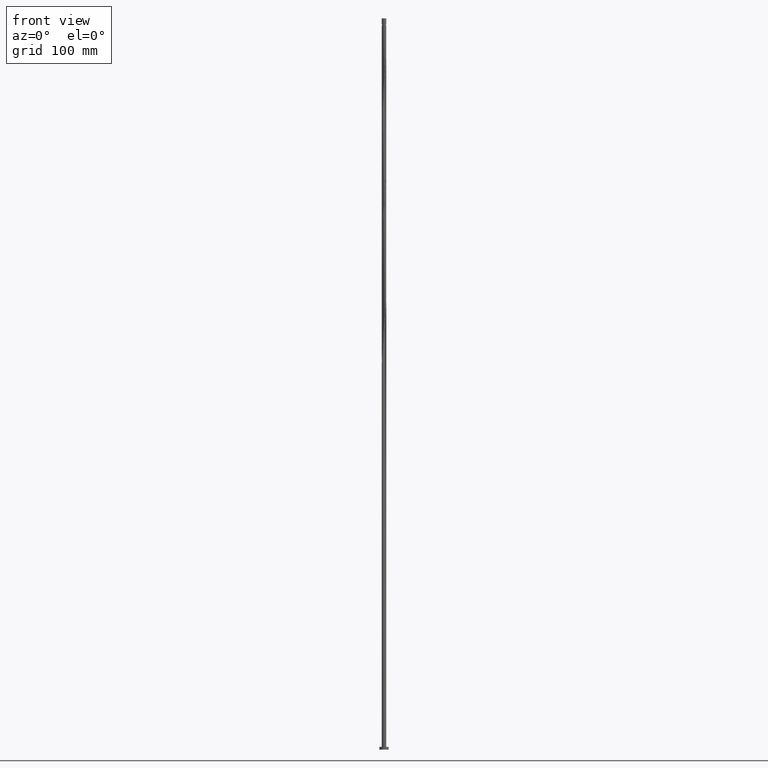
[diagram: clean part render]
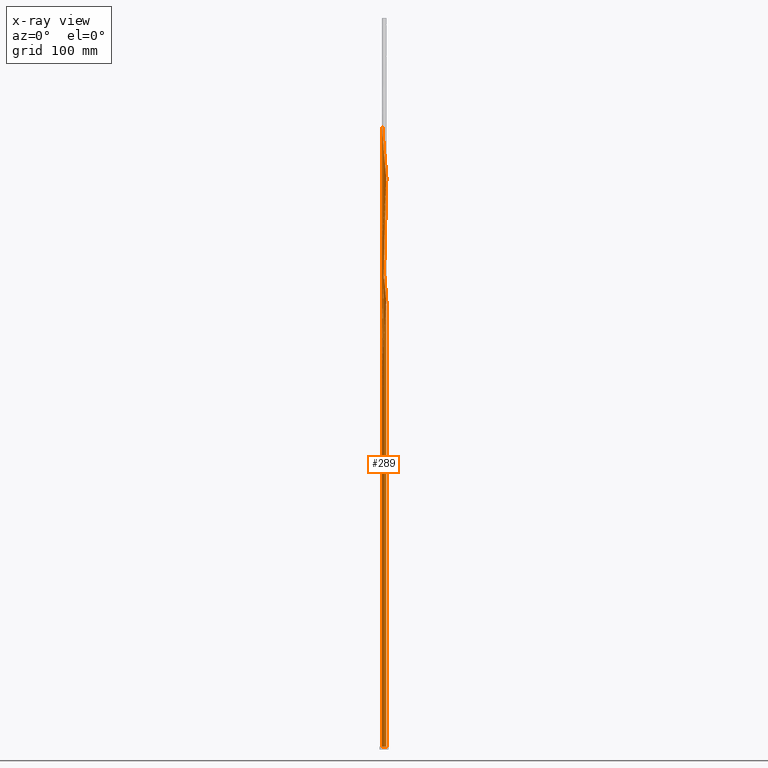
[diagram: x-ray — body ghosted, one internal face saturated and labeled with its STEP entity id]
A machine part, front view, then the same camera in x-ray: the body is ghosted and one INTERNAL B-rep face — a face not visible from any outside direction — is saturated and labeled: STEP entity #289.
In plain terms, the highlighted cylindrical surface (bore or boss wall) has radius 2.5 mm, axis along (-0, -0, -1).
Its self-contained STEP definition (entity closure, byte-faithful):
#4 = CARTESIAN_POINT ( 'NONE',  ( -0.4974937185533173101, 2.450000000000002842, 525.5992265748476484 ) ) ;
#21 = CARTESIAN_POINT ( 'NONE',  ( -2.246634610664050236, 1.116040543891517967, 544.8974721888828299 ) ) ;
#32 = CARTESIAN_POINT ( 'NONE',  ( -2.482714713521074312, -0.2934751288712467154, 557.1781739432689164 ) ) ;
#38 = ORIENTED_EDGE ( 'NONE', *, *, #2211, .T. ) ;
#72 = CARTESIAN_POINT ( 'NONE',  ( 2.458396671022258229, 0.4991987353248812376, 625.5992265748476484 ) ) ;
#76 =( BOUNDED_CURVE ( )  B_SPLINE_CURVE ( 2, ( #100, #111, #1140, #268, #1446, #2129, #1949, #800, #1272, #948, #1495, #1475, #412, #1637, #2168, #780, #2152, #1972, #1832, #631, #2180, #641, #991 ),
 .UNSPECIFIED., .F., .T. ) 
 B_SPLINE_CURVE_WITH_KNOTS ( ( 3, 2, 2, 2, 2, 2, 2, 2, 2, 2, 2, 3 ),
 ( 0.9295295809515955465, 0.9342105263157894912, 0.9407894736842105088, 0.9473684210526315264, 0.9539473684210526550, 0.9605263157894736725, 0.9671052631578946901, 0.9736842105263158187, 0.9802631578947368363, 0.9868421052631578538, 0.9934210526315789824, 1.000000000000000000 ),
 .UNSPECIFIED. ) 
 CURVE ( )  GEOMETRIC_REPRESENTATION_ITEM ( )  RATIONAL_B_SPLINE_CURVE ( ( 0.9078162034607185626, 0.9068816855935255550, 0.9090909090910476165, 0.9059859027334741244, 0.9090909090910476165, 0.9059859027334741244, 0.9090909090910476165, 0.9059859027334741244, 0.9090909090910476165, 0.9059859027334741244, 0.9090909090910476165, 0.9059859027334741244, 0.9090909090910476165, 0.9059859027334741244, 0.9090909090910476165, 0.9059859027334741244, 0.9090909090910476165, 0.9059859027334741244, 0.9090909090910476165, 0.9059859027334741244, 0.9090909090910476165, 0.9059859027334741244, 0.9090909090910476165 ) ) 
 REPRESENTATION_ITEM ( '' )  );
#85 = CARTESIAN_POINT ( 'NONE',  ( 1.112228699609016935, 2.238961214439869174, 644.8974721888828299 ) ) ;
#98 = CARTESIAN_POINT ( 'NONE',  ( 2.400549302211613334, 0.6981139216856757646, 627.3536125397603200 ) ) ;
#100 = CARTESIAN_POINT ( 'NONE',  ( -2.500000000000000000, -1.470478186866312881E-15, 429.8511587756366907 ) ) ;
#111 = CARTESIAN_POINT ( 'NONE',  ( -2.500000000000000000, 0.1472466043835902461, 428.6006316614514162 ) ) ;
#133 = CARTESIAN_POINT ( 'NONE',  ( -2.400549302211613334, -0.6981139216856755425, 427.3536125397600358 ) ) ;
#139 = AXIS2_PLACEMENT_3D ( 'NONE', #1163, #1859, #994 ) ;
#147 = CARTESIAN_POINT ( 'NONE',  ( -0.1195773175907012542, -2.505716431394641841, 453.6694020134442553 ) ) ;
#151 = ORIENTED_EDGE ( 'NONE', *, *, #973, .T. ) ;
#159 = CARTESIAN_POINT ( 'NONE',  ( 2.139466908724898975, -1.293321826333702740, 476.4764195573039842 ) ) ;
#166 = CARTESIAN_POINT ( 'NONE',  ( -2.482714713521074312, -0.2934751288712467154, 423.8448406099354884 ) ) ;
#176 = DIRECTION ( 'NONE',  ( -0.000000000000000000, -0.000000000000000000, -1.000000000000000000 ) ) ;
#177 = CARTESIAN_POINT ( 'NONE',  ( 2.032299206785748602, -1.470603108775887069, 608.0553669257249112 ) ) ;
#188 = CARTESIAN_POINT ( 'NONE',  ( 1.444679581242195976, -2.050808249687219309, 601.0378230660759300 ) ) ;
#202 = CARTESIAN_POINT ( 'NONE',  ( -2.458396671022258229, -0.4991987353248816817, 558.9325599081810196 ) ) ;
#214 = CARTESIAN_POINT ( 'NONE',  ( -2.043803699768433457, -1.439745268029342329, 567.7044897327425588 ) ) ;
#224 = CARTESIAN_POINT ( 'NONE',  ( -1.924503005532209432, -1.609099670977772734, 569.4588756976547756 ) ) ;
#231 = CARTESIAN_POINT ( 'NONE',  ( -2.500000000000004885, -3.135029636973842841E-16, 688.0139610407256896 ) ) ;
#262 = ORIENTED_EDGE ( 'NONE', *, *, #1343, .F. ) ;
#264 = CARTESIAN_POINT ( 'NONE',  ( -0.8939652988547164281, 2.334700418564149782, 662.4413318380056808 ) ) ;
#268 = CARTESIAN_POINT ( 'NONE',  ( -2.458396671022254676, 0.4991987353248814596, 425.5992265748478189 ) ) ;
#271 = VERTEX_POINT ( 'NONE', #231 ) ;
#286 = CARTESIAN_POINT ( 'NONE',  ( -1.897413592570358798, 1.627827281602462595, 672.9676476274794368 ) ) ;
#289 = ADVANCED_FACE ( 'NONE', ( #1789 ), #929, .T. ) ;
#294 = CARTESIAN_POINT ( 'NONE',  ( -1.087424091151736327, 2.260624341952042204, 397.5290511362512689 ) ) ;
#301 = CARTESIAN_POINT ( 'NONE',  ( -1.633406191873756574, -1.903916432460142749, 439.6343142941460655 ) ) ;
#311 = CARTESIAN_POINT ( 'NONE',  ( 0.4974937185533181982, 2.449999999999998401, 392.2658932415143909 ) ) ;
#314 = CARTESIAN_POINT ( 'NONE',  ( -0.4974937185533173101, 2.450000000000002842, 392.2658932415143909 ) ) ;
#320 = CARTESIAN_POINT ( 'NONE',  ( -0.7285384460830799380, -2.391491528853672222, 448.4062441187074910 ) ) ;
#330 = CARTESIAN_POINT ( 'NONE',  ( 0.000000000000000000, 0.000000000000000000, 800.0000000000000000 ) ) ;
#338 = DIRECTION ( 'NONE',  ( -0.000000000000000000, -0.000000000000000000, -1.000000000000000000 ) ) ;
#339 = CARTESIAN_POINT ( 'NONE',  ( 1.266051836196966596, -2.155716295819630979, 465.9501037678301714 ) ) ;
#340 = EDGE_CURVE ( 'NONE', #271, #1111, #348, .T. ) ;
#348 = LINE ( 'NONE', #362, #526 ) ;
#349 = CARTESIAN_POINT ( 'NONE',  ( 1.603603779798582707, -1.917929852058129381, 602.7922090309880332 ) ) ;
#355 = LINE ( 'NONE', #1172, #831 ) ;
#362 = CARTESIAN_POINT ( 'NONE',  ( -2.500000000000000000, 0.000000000000000000, 800.0000000000000000 ) ) ;
#363 = CARTESIAN_POINT ( 'NONE',  ( -2.400549302211613334, -0.6981139216856755425, 560.6869458730934639 ) ) ;
#377 = CARTESIAN_POINT ( 'NONE',  ( -1.465580253573449232, -2.025357874632432775, 574.7220335923917673 ) ) ;
#380 = CARTESIAN_POINT ( 'NONE',  ( -2.500000000000000000, 0.000000000000000000, 3.000000000000000000 ) ) ;
#386 = CARTESIAN_POINT ( 'NONE',  ( -1.266051836196966818, 2.155716295819630535, 532.6167704344968570 ) ) ;
#397 = CARTESIAN_POINT ( 'NONE',  ( 0.3249755629059850048, 2.478788188513483259, 518.5816827151985535 ) ) ;
#408 = DIRECTION ( 'NONE',  ( 0.000000000000000000, 0.000000000000000000, 1.000000000000000000 ) ) ;
#409 = CARTESIAN_POINT ( 'NONE',  ( 2.043803699768433013, 1.439745268029343217, 634.3711563994093012 ) ) ;
#412 = CARTESIAN_POINT ( 'NONE',  ( -1.465580253573446345, 2.025357874632430111, 409.8097528906371849 ) ) ;
#434 = CARTESIAN_POINT ( 'NONE',  ( -2.032299206785748602, 1.470603108775886403, 674.7220335923916537 ) ) ;
#454 = VERTEX_POINT ( 'NONE', #595 ) ;
#456 = ORIENTED_EDGE ( 'NONE', *, *, #2003, .T. ) ;
#458 = CARTESIAN_POINT ( 'NONE',  ( 1.924503005532210320, 1.609099670977771401, 636.1255423643215181 ) ) ;
#473 = CARTESIAN_POINT ( 'NONE',  ( -2.500000000000003997, -0.1472466043835884697, 422.5978214882442217 ) ) ;
#479 = ORIENTED_EDGE ( 'NONE', *, *, #2003, .F. ) ;
#481 =( BOUNDED_CURVE ( )  B_SPLINE_CURVE ( 2, ( #1086, #1782, #1143, #294, #1661, #835, #1706, #855, #687, #870, #2028, #845, #2046, #2053, #2035, #2019, #1524, #1885, #669 ),
 .UNSPECIFIED., .F., .T. ) 
 B_SPLINE_CURVE_WITH_KNOTS ( ( 3, 2, 2, 2, 2, 2, 2, 2, 2, 3 ),
 ( 0.000000000000000000, 0.006578947368421017572, 0.01315789473684214617, 0.01973684210526316374, 0.02631578947368418131, 0.03289473684210530990, 0.03947368421052632748, 0.04605263157894734505, 0.05263157894736847364, 0.05452958095159550489 ),
 .UNSPECIFIED. ) 
 CURVE ( )  GEOMETRIC_REPRESENTATION_ITEM ( )  RATIONAL_B_SPLINE_CURVE ( ( 0.9090909090910541668, 0.9059859027334807857, 0.9090909090910541668, 0.9059859027334807857, 0.9090909090910541668, 0.9059859027334807857, 0.9090909090910541668, 0.9059859027334807857, 0.9090909090910541668, 0.9059859027334807857, 0.9090909090910541668, 0.9059859027334807857, 0.9090909090910541668, 0.9059859027334807857, 0.9090909090910541668, 0.9059859027334807857, 0.9090909090910541668, 0.9081951262310028472, 0.9078162034607253350 ) ) 
 REPRESENTATION_ITEM ( '' )  );
#486 = CARTESIAN_POINT ( 'NONE',  ( -1.465580253573449232, -2.025357874632432775, 441.3887002590582824 ) ) ;
#514 = CARTESIAN_POINT ( 'NONE',  ( -2.252903163702812961, -1.083709986563691663, 430.8623844695845264 ) ) ;
#524 = CARTESIAN_POINT ( 'NONE',  ( -2.487283522779933254, 0.3260893232700637356, 551.9150160485321521 ) ) ;
#526 = VECTOR ( 'NONE', #176, 1000.000000000000000 ) ;
#535 = CARTESIAN_POINT ( 'NONE',  ( 0.8939652988547160950, -2.334700418564150226, 595.7746651713389383 ) ) ;
#544 = CARTESIAN_POINT ( 'NONE',  ( 0.4974937185533176986, -2.450000000000002842, 592.2658932415143909 ) ) ;
#558 = CARTESIAN_POINT ( 'NONE',  ( 0.5303738082212694493, 2.451859945632325566, 516.8272967502863366 ) ) ;
#568 = CARTESIAN_POINT ( 'NONE',  ( -0.3249755629059847273, -2.478788188513483259, 585.2483493818652960 ) ) ;
#582 = CARTESIAN_POINT ( 'NONE',  ( -1.266051836196966818, 2.155716295819630535, 665.9501037678302282 ) ) ;
#595 = CARTESIAN_POINT ( 'NONE',  ( -2.500000000000004885, 2.157198964489144147E-15, 421.3472943740588903 ) ) ;
#596 = CARTESIAN_POINT ( 'NONE',  ( 2.482714713521074312, 0.2934751288712458828, 623.8448406099354315 ) ) ;
#606 = CARTESIAN_POINT ( 'NONE',  ( -2.139466908724899419, 1.293321826333702074, 676.4764195573037568 ) ) ;
#615 = ORIENTED_EDGE ( 'NONE', *, *, #1110, .F. ) ;
#618 = CARTESIAN_POINT ( 'NONE',  ( -1.444679581242196642, 2.050808249687219309, 667.7044897327425588 ) ) ;
#627 = CARTESIAN_POINT ( 'NONE',  ( 1.633406191873756796, 1.903916432460142527, 639.6343142941458382 ) ) ;
#631 = CARTESIAN_POINT ( 'NONE',  ( -0.1195773175906997554, 2.505716431394637844, 397.5290511362513826 ) ) ;
#635 = DIRECTION ( 'NONE',  ( 1.000000000000000000, 0.000000000000000000, 0.000000000000000000 ) ) ;
#641 = CARTESIAN_POINT ( 'NONE',  ( 0.2944809305489391460, 2.491223504823743884, 394.0202792064266646 ) ) ;
#654 = CARTESIAN_POINT ( 'NONE',  ( 1.444679581242195976, -2.050808249687219309, 467.7044897327424451 ) ) ;
#665 = CARTESIAN_POINT ( 'NONE',  ( 0.2944809305489382578, -2.491223504823747881, 457.1781739432686891 ) ) ;
#669 = CARTESIAN_POINT ( 'NONE',  ( -2.500000000000004885, 2.157198964489144147E-15, 421.3472943740588903 ) ) ;
#673 = CARTESIAN_POINT ( 'NONE',  ( 2.458396671022258229, 0.4991987353248812376, 492.2658932415145046 ) ) ;
#683 = CARTESIAN_POINT ( 'NONE',  ( 2.400549302211613334, 0.6981139216856757646, 494.0202792064266646 ) ) ;
#687 = CARTESIAN_POINT ( 'NONE',  ( -1.897413592570358798, 1.627827281602462595, 406.3009809608128080 ) ) ;
#695 = CARTESIAN_POINT ( 'NONE',  ( 0.2944809305489382578, -2.491223504823747881, 590.5115072766020603 ) ) ;
#705 = CARTESIAN_POINT ( 'NONE',  ( -2.139466908724899419, 1.293321826333702074, 543.1430862239704993 ) ) ;
#716 = CARTESIAN_POINT ( 'NONE',  ( -1.897413592570358798, 1.627827281602462595, 539.6343142941460655 ) ) ;
#726 = CARTESIAN_POINT ( 'NONE',  ( -1.297754315273141446, -2.146799316804722579, 576.4764195573038705 ) ) ;
#732 = VERTEX_POINT ( 'NONE', #380 ) ;
#736 = CARTESIAN_POINT ( 'NONE',  ( 0.1195773175907005603, 2.505716431394641841, 520.3360686801109978 ) ) ;
#761 = CARTESIAN_POINT ( 'NONE',  ( 2.252903163702813405, 1.083709986563690775, 630.8623844695848675 ) ) ;
#777 = CARTESIAN_POINT ( 'NONE',  ( -2.399687678902772348, 0.7310353022703551806, 681.7395774520406349 ) ) ;
#780 = CARTESIAN_POINT ( 'NONE',  ( -0.9267030839448892054, 2.331123112075013992, 404.5465949959005343 ) ) ;
#787 = CARTESIAN_POINT ( 'NONE',  ( -2.246634610664050236, 1.116040543891517967, 678.2308055222163148 ) ) ;
#798 = CARTESIAN_POINT ( 'NONE',  ( 2.443485600841353467, -0.5285623127702102630, 616.8272967502862230 ) ) ;
#800 = CARTESIAN_POINT ( 'NONE',  ( -2.163104394004653486, 1.270390865080911702, 418.5816827151986672 ) ) ;
#806 = VERTEX_POINT ( 'NONE', #2063 ) ;
#812 = DIRECTION ( 'NONE',  ( 0.000000000000000000, -0.000000000000000000, -1.000000000000000000 ) ) ;
#831 = VECTOR ( 'NONE', #2213, 1000.000000000000000 ) ;
#835 = CARTESIAN_POINT ( 'NONE',  ( -1.444679581242196642, 2.050808249687219309, 401.0378230660758163 ) ) ;
#842 = CARTESIAN_POINT ( 'NONE',  ( 2.323161144783412180, -0.9235379230809367401, 479.9851914871284748 ) ) ;
#845 = CARTESIAN_POINT ( 'NONE',  ( -2.246634610664050236, 1.116040543891517967, 411.5641388555495723 ) ) ;
#851 = CARTESIAN_POINT ( 'NONE',  ( -2.500000000000004885, 2.157198964489144147E-15, 421.3472943740588903 ) ) ;
#855 = CARTESIAN_POINT ( 'NONE',  ( -1.762527978354969882, 1.785051454429039453, 404.5465949959004206 ) ) ;
#859 = CARTESIAN_POINT ( 'NONE',  ( 2.399687678902772348, -0.7310353022703568460, 481.7395774520406917 ) ) ;
#867 = CARTESIAN_POINT ( 'NONE',  ( 1.465580253573450342, 2.025357874632431887, 508.0553669257250817 ) ) ;
#870 = CARTESIAN_POINT ( 'NONE',  ( -2.032299206785748602, 1.470603108775886403, 408.0553669257249680 ) ) ;
#877 = CARTESIAN_POINT ( 'NONE',  ( -1.762527978354969882, 1.785051454429039453, 537.8799283292337350 ) ) ;
#887 = CARTESIAN_POINT ( 'NONE',  ( 2.163104394004657482, 1.270390865080912812, 499.2834371011635426 ) ) ;
#900 = CARTESIAN_POINT ( 'NONE',  ( -0.1195773175907012542, -2.505716431394641841, 587.0027353467775129 ) ) ;
#910 = CARTESIAN_POINT ( 'NONE',  ( -1.087424091151736327, 2.260624341952042204, 530.8623844695846401 ) ) ;
#923 = CARTESIAN_POINT ( 'NONE',  ( -0.7005065065576968619, 2.408776495176257804, 660.6869458730934639 ) ) ;
#929 = CYLINDRICAL_SURFACE ( 'NONE', #987, 2.500000000000000000 ) ;
#934 = CARTESIAN_POINT ( 'NONE',  ( -1.087424091151736327, 2.260624341952042204, 664.1957178029180113 ) ) ;
#941 = EDGE_LOOP ( 'NONE', ( #2173, #262, #456, #38, #1008, #479, #1500, #151, #615 ) ) ;
#944 = CARTESIAN_POINT ( 'NONE',  ( 0.5303738082212694493, 2.451859945632325566, 650.1606300836197079 ) ) ;
#948 = CARTESIAN_POINT ( 'NONE',  ( -1.924503005532206323, 1.609099670977771179, 415.0729107853741198 ) ) ;
#956 = CARTESIAN_POINT ( 'NONE',  ( -0.4974937185533173101, 2.450000000000002842, 658.9325599081814744 ) ) ;
#973 = EDGE_CURVE ( 'NONE', #2185, #1126, #1545, .T. ) ;
#981 = CARTESIAN_POINT ( 'NONE',  ( 0.8939652988547160950, -2.334700418564150226, 462.4413318380055671 ) ) ;
#987 = AXIS2_PLACEMENT_3D ( 'NONE', #330, #338, #2239 ) ;
#991 = CARTESIAN_POINT ( 'NONE',  ( 0.4974937185533181982, 2.449999999999998401, 392.2658932415144477 ) ) ;
#994 = DIRECTION ( 'NONE',  ( 1.000000000000000000, 0.000000000000000000, 0.000000000000000000 ) ) ;
#1008 = ORIENTED_EDGE ( 'NONE', *, *, #1608, .T. ) ;
#1014 = CARTESIAN_POINT ( 'NONE',  ( -0.9267030839448907598, -2.331123112075017545, 446.6518581537951604 ) ) ;
#1029 = CARTESIAN_POINT ( 'NONE',  ( 1.762527978354968994, -1.785051454429040563, 604.5465949959005911 ) ) ;
#1042 = CARTESIAN_POINT ( 'NONE',  ( -2.163104394004657482, -1.270390865080913256, 565.9501037678301145 ) ) ;
#1053 = CARTESIAN_POINT ( 'NONE',  ( 2.043803699768433013, 1.439745268029343217, 501.0378230660759300 ) ) ;
#1060 = CARTESIAN_POINT ( 'NONE',  ( -0.7285384460830799380, -2.391491528853672222, 581.7395774520408622 ) ) ;
#1073 = CARTESIAN_POINT ( 'NONE',  ( -2.507032756019887731, -0.08775152241761188798, 555.4237879783566996 ) ) ;
#1086 = CARTESIAN_POINT ( 'NONE',  ( -0.4974937185533173101, 2.450000000000002842, 392.2658932415143909 ) ) ;
#1087 = CARTESIAN_POINT ( 'NONE',  ( -0.08745180647911761362, 2.498469968109195083, 655.4237879783566996 ) ) ;
#1110 = EDGE_CURVE ( 'NONE', #1111, #1126, #76, .T. ) ;
#1111 = VERTEX_POINT ( 'NONE', #1546 ) ;
#1116 = CARTESIAN_POINT ( 'NONE',  ( -2.500000000000004885, -3.135029636973842841E-16, 688.0139610407256896 ) ) ;
#1126 = VERTEX_POINT ( 'NONE', #311 ) ;
#1127 = CARTESIAN_POINT ( 'NONE',  ( 2.323161144783412180, -0.9235379230809367401, 613.3185248204619029 ) ) ;
#1136 = CARTESIAN_POINT ( 'NONE',  ( -0.2944809305489379803, 2.491223504823747881, 657.1781739432689164 ) ) ;
#1140 = CARTESIAN_POINT ( 'NONE',  ( -2.482714713521069871, 0.2934751288712468820, 427.3536125397600358 ) ) ;
#1143 = CARTESIAN_POINT ( 'NONE',  ( -0.8939652988547164281, 2.334700418564149782, 395.7746651713390520 ) ) ;
#1160 = CARTESIAN_POINT ( 'NONE',  ( 2.342701933400969772, 0.8970291080464682931, 495.7746651713391088 ) ) ;
#1163 = CARTESIAN_POINT ( 'NONE',  ( 0.000000000000000000, 0.000000000000000000, 3.000000000000000000 ) ) ;
#1169 = CARTESIAN_POINT ( 'NONE',  ( -1.778954598702983114, -1.756508051718957519, 437.8799283292337918 ) ) ;
#1172 = CARTESIAN_POINT ( 'NONE',  ( -2.500000000000000000, 0.000000000000000000, 800.0000000000000000 ) ) ;
#1179 = CARTESIAN_POINT ( 'NONE',  ( 0.08745180647911898753, -2.498469968109194639, 455.4237879783565859 ) ) ;
#1187 = CARTESIAN_POINT ( 'NONE',  ( -2.163104394004657482, -1.270390865080913256, 432.6167704344968570 ) ) ;
#1196 = CARTESIAN_POINT ( 'NONE',  ( -0.9267030839448907598, -2.331123112075017545, 579.9851914871283043 ) ) ;
#1208 = CARTESIAN_POINT ( 'NONE',  ( -0.5303738082212692273, -2.451859945632325566, 583.4939634169530791 ) ) ;
#1213 = AXIS2_PLACEMENT_3D ( 'NONE', #1456, #408, #635 ) ;
#1221 = CARTESIAN_POINT ( 'NONE',  ( 1.897413592570359020, -1.627827281602463261, 606.3009809608126943 ) ) ;
#1229 = CARTESIAN_POINT ( 'NONE',  ( -0.08745180647911761362, 2.498469968109195083, 522.0904546450231010 ) ) ;
#1239 = CARTESIAN_POINT ( 'NONE',  ( 1.297754315273143000, 2.146799316804722135, 509.8097528906373554 ) ) ;
#1269 = CARTESIAN_POINT ( 'NONE',  ( -2.500000000000005329, 0.05961833561290537375, 687.5076380222856187 ) ) ;
#1272 = CARTESIAN_POINT ( 'NONE',  ( -2.043803699768429905, 1.439745268029341441, 416.8272967502863935 ) ) ;
#1280 = CARTESIAN_POINT ( 'NONE',  ( -2.497158139399911381, 0.1191689004262258822, 687.0027353467776265 ) ) ;
#1294 = CARTESIAN_POINT ( 'NONE',  ( 0.9267030839448909818, 2.331123112075017545, 646.6518581537951604 ) ) ;
#1305 = CARTESIAN_POINT ( 'NONE',  ( 1.465580253573450342, 2.025357874632431887, 641.3887002590583961 ) ) ;
#1318 = CARTESIAN_POINT ( 'NONE',  ( -2.043803699768433457, -1.439745268029342329, 434.3711563994091307 ) ) ;
#1330 = CARTESIAN_POINT ( 'NONE',  ( 2.246634610664049347, -1.116040543891518189, 478.2308055222161443 ) ) ;
#1343 = EDGE_CURVE ( 'NONE', #454, #271, #1401, .T. ) ;
#1351 = CARTESIAN_POINT ( 'NONE',  ( -1.924503005532209432, -1.609099670977772734, 436.1255423643214613 ) ) ;
#1359 = CARTESIAN_POINT ( 'NONE',  ( 2.032299206785748602, -1.470603108775887069, 474.7220335923915968 ) ) ;
#1368 = CARTESIAN_POINT ( 'NONE',  ( 0.7005065065576958627, -2.408776495176258248, 594.0202792064266077 ) ) ;
#1380 = CARTESIAN_POINT ( 'NONE',  ( -2.497158139399911381, 0.1191689004262258822, 553.6694020134442553 ) ) ;
#1390 = CARTESIAN_POINT ( 'NONE',  ( 1.778954598702983780, 1.756508051718957519, 504.5465949959003638 ) ) ;
#1401 =( BOUNDED_CURVE ( )  B_SPLINE_CURVE ( 2, ( #851, #473, #166, #1864, #133, #1692, #514, #1187, #1318, #1351, #1169, #301, #486, #1505, #2199, #1014, #320, #2218, #2208, #147, #1179, #665, #1844, #1519, #981, #1882, #339, #654, #2226, #1702, #1712, #1359, #159, #1330, #842, #859, #1537, #2005, #1669, #1529, #2016, #673, #683, #1160, #1855, #887, #1053, #1404, #1390, #2050, #867, #1239, #2099, #1556, #1600, #558, #397, #736, #1229, #2240, #4, #1924, #1580, #910, #386, #1935, #1416, #877, #716, #1757, #705, #21, #1745, #2084, #2073, #524, #1380, #1073, #32, #202, #363, #1592, #1767, #1042, #214, #224, #1721, #2059, #377, #726, #1568, #1196, #1060, #1208, #568, #900, #1900, #695, #544, #1368, #535, #1888, #1732, #188, #349, #1029, #1221, #177, #1912, #1458, #1127, #1946, #798, #1829, #2138, #1810, #596, #72, #98, #1481, #761, #1981, #409, #458, #2124, #627, #1305, #1797, #85, #1294, #1441, #944, #1968, #1473, #1087, #1136, #956, #923, #264, #934, #582, #618, #1623, #1612, #286, #434, #606, #787, #1783, #777, #1991, #2150, #1280, #1269, #1116 ),
 .UNSPECIFIED., .F., .T. ) 
 B_SPLINE_CURVE_WITH_KNOTS ( ( 3, 2, 2, 2, 2, 2, 2, 2, 2, 2, 2, 2, 2, 2, 2, 2, 2, 2, 2, 2, 2, 2, 2, 2, 2, 2, 2, 2, 2, 2, 2, 2, 2, 2, 2, 2, 2, 2, 2, 2, 2, 2, 2, 2, 2, 2, 2, 2, 2, 2, 2, 2, 2, 2, 2, 2, 2, 2, 2, 2, 2, 2, 2, 2, 2, 2, 2, 2, 2, 2, 2, 2, 2, 2, 2, 2, 2, 3 ),
 ( 0.05452958095159550489, 0.05921052631578949121, 0.06578947368421050879, 0.07236842105263152636, 0.07894736842105265495, 0.08552631578947367252, 0.09210526315789469010, 0.09868421052631581869, 0.1052631578947368363, 0.1118421052631578538, 0.1184210526315789824, 0.1250000000000000000, 0.1315789473684210176, 0.1381578947368421462, 0.1447368421052631637, 0.1513157894736841813, 0.1578947368421053099, 0.1644736842105263275, 0.1710526315789473450, 0.1776315789473684736, 0.1842105263157894912, 0.1907894736842105088, 0.1973684210526315264, 0.2039473684210526550, 0.2105263157894736725, 0.2171052631578946901, 0.2236842105263158187, 0.2302631578947368363, 0.2368421052631578538, 0.2434210526315789824, 0.2500000000000000000, 0.2565789473684210176, 0.2631578947368421462, 0.2697368421052631637, 0.2763157894736841813, 0.2828947368421053099, 0.2894736842105263275, 0.2960526315789473450, 0.3026315789473684736, 0.3092105263157894912, 0.3157894736842105088, 0.3223684210526315264, 0.3289473684210526550, 0.3355263157894736725, 0.3421052631578946901, 0.3486842105263158187, 0.3552631578947368363, 0.3618421052631578538, 0.3684210526315789824, 0.3750000000000000000, 0.3815789473684210176, 0.3881578947368421462, 0.3947368421052631637, 0.4013157894736841813, 0.4078947368421053099, 0.4144736842105263275, 0.4210526315789473450, 0.4276315789473684736, 0.4342105263157894912, 0.4407894736842105088, 0.4473684210526315264, 0.4539473684210526550, 0.4605263157894736725, 0.4671052631578946901, 0.4736842105263158187, 0.4802631578947368363, 0.4868421052631578538, 0.4934210526315789824, 0.5000000000000000000, 0.5065789473684210176, 0.5131578947368420351, 0.5197368421052631637, 0.5263157894736842923, 0.5328947368421053099, 0.5394736842105263275, 0.5460526315789473450, 0.5526315789473683626, 0.5545295809515957686 ),
 .UNSPECIFIED. ) 
 CURVE ( )  GEOMETRIC_REPRESENTATION_ITEM ( )  RATIONAL_B_SPLINE_CURVE ( ( 0.9078162034607253350, 0.9068816855935322163, 0.9090909090910541668, 0.9059859027334807857, 0.9090909090910541668, 0.9059859027334807857, 0.9090909090910541668, 0.9059859027334807857, 0.9090909090910541668, 0.9059859027334807857, 0.9090909090910541668, 0.9059859027334807857, 0.9090909090910541668, 0.9059859027334807857, 0.9090909090910541668, 0.9059859027334807857, 0.9090909090910541668, 0.9059859027334807857, 0.9090909090910541668, 0.9059859027334807857, 0.9090909090910541668, 0.9059859027334807857, 0.9090909090910541668, 0.9059859027334807857, 0.9090909090910541668, 0.9059859027334807857, 0.9090909090910541668, 0.9059859027334807857, 0.9090909090910541668, 0.9059859027334807857, 0.9090909090910541668, 0.9059859027334807857, 0.9090909090910541668, 0.9059859027334807857, 0.9090909090910541668, 0.9059859027334807857, 0.9090909090910541668, 0.9059859027334807857, 0.9090909090910541668, 0.9059859027334807857, 0.9090909090910541668, 0.9059859027334807857, 0.9090909090910541668, 0.9059859027334807857, 0.9090909090910541668, 0.9059859027334807857, 0.9090909090910541668, 0.9059859027334807857, 0.9090909090910541668, 0.9059859027334807857, 0.9090909090910541668, 0.9059859027334807857, 0.9090909090910541668, 0.9059859027334807857, 0.9090909090910541668, 0.9059859027334807857, 0.9090909090910541668, 0.9059859027334807857, 0.9090909090910541668, 0.9059859027334807857, 0.9090909090910541668, 0.9059859027334807857, 0.9090909090910541668, 0.9059859027334807857, 0.9090909090910541668, 0.9059859027334807857, 0.9090909090910541668, 0.9059859027334807857, 0.9090909090910541668, 0.9059859027334807857, 0.9090909090910541668, 0.9059859027334807857, 0.9090909090910541668, 0.9059859027334807857, 0.9090909090910541668, 0.9059859027334807857, 0.9090909090910541668, 0.9059859027334807857, 0.9090909090910541668, 0.9059859027334807857, 0.9090909090910541668, 0.9059859027334807857, 0.9090909090910541668, 0.9059859027334807857, 0.9090909090910541668, 0.9059859027334807857, 0.9090909090910541668, 0.9059859027334807857, 0.9090909090910541668, 0.9059859027334807857, 0.9090909090910541668, 0.9059859027334807857, 0.9090909090910541668, 0.9059859027334807857, 0.9090909090910541668, 0.9059859027334807857, 0.9090909090910541668, 0.9059859027334807857, 0.9090909090910541668, 0.9059859027334807857, 0.9090909090910541668, 0.9059859027334807857, 0.9090909090910541668, 0.9059859027334807857, 0.9090909090910541668, 0.9059859027334807857, 0.9090909090910541668, 0.9059859027334807857, 0.9090909090910541668, 0.9059859027334807857, 0.9090909090910541668, 0.9059859027334807857, 0.9090909090910541668, 0.9059859027334807857, 0.9090909090910541668, 0.9059859027334807857, 0.9090909090910541668, 0.9059859027334807857, 0.9090909090910541668, 0.9059859027334807857, 0.9090909090910541668, 0.9059859027334807857, 0.9090909090910541668, 0.9059859027334807857, 0.9090909090910541668, 0.9059859027334807857, 0.9090909090910541668, 0.9059859027334807857, 0.9090909090910541668, 0.9059859027334807857, 0.9090909090910541668, 0.9059859027334807857, 0.9090909090910541668, 0.9059859027334807857, 0.9090909090910541668, 0.9059859027334807857, 0.9090909090910541668, 0.9059859027334807857, 0.9090909090910541668, 0.9059859027334807857, 0.9090909090910541668, 0.9059859027334807857, 0.9090909090910541668, 0.9059859027334807857, 0.9090909090910541668, 0.9059859027334807857, 0.9090909090910541668, 0.9059859027334807857, 0.9090909090910541668, 0.9059859027334807857, 0.9090909090910541668, 0.9059859027334807857, 0.9090909090910541668, 0.9081951262310025141, 0.9078162034607251130 ) ) 
 REPRESENTATION_ITEM ( '' )  );
#1404 = CARTESIAN_POINT ( 'NONE',  ( 1.924503005532210320, 1.609099670977771401, 502.7922090309882037 ) ) ;
#1416 = CARTESIAN_POINT ( 'NONE',  ( -1.603603779798582929, 1.917929852058129381, 536.1255423643215181 ) ) ;
#1441 = CARTESIAN_POINT ( 'NONE',  ( 0.7285384460830813813, 2.391491528853672222, 648.4062441187074910 ) ) ;
#1446 = CARTESIAN_POINT ( 'NONE',  ( -2.400549302211609781, 0.6981139216856749874, 423.8448406099354315 ) ) ;
#1456 = CARTESIAN_POINT ( 'NONE',  ( 0.000000000000000000, 0.000000000000000000, 3.000000000000000000 ) ) ;
#1458 = CARTESIAN_POINT ( 'NONE',  ( 2.246634610664049347, -1.116040543891518189, 611.5641388555494586 ) ) ;
#1473 = CARTESIAN_POINT ( 'NONE',  ( 0.1195773175907005603, 2.505716431394641841, 653.6694020134443690 ) ) ;
#1475 = CARTESIAN_POINT ( 'NONE',  ( -1.633406191873753688, 1.903916432460140529, 411.5641388555495723 ) ) ;
#1481 = CARTESIAN_POINT ( 'NONE',  ( 2.342701933400969772, 0.8970291080464682931, 629.1079985046721958 ) ) ;
#1495 = CARTESIAN_POINT ( 'NONE',  ( -1.778954598702979784, 1.756508051718955743, 413.3185248204617892 ) ) ;
#1500 = ORIENTED_EDGE ( 'NONE', *, *, #1773, .F. ) ;
#1505 = CARTESIAN_POINT ( 'NONE',  ( -1.297754315273141446, -2.146799316804722579, 443.1430862239705561 ) ) ;
#1519 = CARTESIAN_POINT ( 'NONE',  ( 0.7005065065576958627, -2.408776495176258248, 460.6869458730933502 ) ) ;
#1524 = CARTESIAN_POINT ( 'NONE',  ( -2.497158139399911381, 0.1191689004262258822, 420.3360686801108841 ) ) ;
#1529 = CARTESIAN_POINT ( 'NONE',  ( 2.507032756019887731, 0.08775152241761056959, 488.7571213116898434 ) ) ;
#1537 = CARTESIAN_POINT ( 'NONE',  ( 2.443485600841353467, -0.5285623127702102630, 483.4939634169530223 ) ) ;
#1545 = CIRCLE ( 'NONE', #1582, 2.500000000000000000 ) ;
#1546 = CARTESIAN_POINT ( 'NONE',  ( -2.500000000000000000, -1.470478186866312881E-15, 429.8511587756367476 ) ) ;
#1556 = CARTESIAN_POINT ( 'NONE',  ( 0.9267030839448909818, 2.331123112075017545, 513.3185248204619029 ) ) ;
#1568 = CARTESIAN_POINT ( 'NONE',  ( -1.112228699609016935, -2.238961214439870062, 578.2308055222164285 ) ) ;
#1580 = CARTESIAN_POINT ( 'NONE',  ( -0.8939652988547164281, 2.334700418564149782, 529.1079985046723095 ) ) ;
#1582 = AXIS2_PLACEMENT_3D ( 'NONE', #1824, #812, #1960 ) ;
#1592 = CARTESIAN_POINT ( 'NONE',  ( -2.342701933400969327, -0.8970291080464696254, 562.4413318380055671 ) ) ;
#1600 = CARTESIAN_POINT ( 'NONE',  ( 0.7285384460830813813, 2.391491528853672222, 515.0729107853740061 ) ) ;
#1608 = EDGE_CURVE ( 'NONE', #806, #732, #1899, .T. ) ;
#1612 = CARTESIAN_POINT ( 'NONE',  ( -1.762527978354969882, 1.785051454429039453, 671.2132616625671062 ) ) ;
#1623 = CARTESIAN_POINT ( 'NONE',  ( -1.603603779798582929, 1.917929852058129381, 669.4588756976548893 ) ) ;
#1637 = CARTESIAN_POINT ( 'NONE',  ( -1.297754315273139447, 2.146799316804719471, 408.0553669257249680 ) ) ;
#1661 = CARTESIAN_POINT ( 'NONE',  ( -1.266051836196966818, 2.155716295819630535, 399.2834371011635994 ) ) ;
#1669 = CARTESIAN_POINT ( 'NONE',  ( 2.497158139399910937, -0.1191689004262256601, 487.0027353467775697 ) ) ;
#1692 = CARTESIAN_POINT ( 'NONE',  ( -2.342701933400969327, -0.8970291080464696254, 429.1079985046723664 ) ) ;
#1702 = CARTESIAN_POINT ( 'NONE',  ( 1.762527978354968994, -1.785051454429040563, 471.2132616625669925 ) ) ;
#1706 = CARTESIAN_POINT ( 'NONE',  ( -1.603603779798582929, 1.917929852058129381, 402.7922090309880900 ) ) ;
#1712 = CARTESIAN_POINT ( 'NONE',  ( 1.897413592570359020, -1.627827281602463261, 472.9676476274792662 ) ) ;
#1721 = CARTESIAN_POINT ( 'NONE',  ( -1.778954598702983114, -1.756508051718957519, 571.2132616625669925 ) ) ;
#1732 = CARTESIAN_POINT ( 'NONE',  ( 1.266051836196966596, -2.155716295819630979, 599.2834371011637131 ) ) ;
#1745 = CARTESIAN_POINT ( 'NONE',  ( -2.323161144783412180, 0.9235379230809367401, 546.6518581537952741 ) ) ;
#1757 = CARTESIAN_POINT ( 'NONE',  ( -2.032299206785748602, 1.470603108775886403, 541.3887002590583961 ) ) ;
#1758 = CIRCLE ( 'NONE', #139, 2.500000000000000000 ) ;
#1767 = CARTESIAN_POINT ( 'NONE',  ( -2.252903163702812961, -1.083709986563691663, 564.1957178029178976 ) ) ;
#1773 = EDGE_CURVE ( 'NONE', #2185, #454, #481, .T. ) ;
#1782 = CARTESIAN_POINT ( 'NONE',  ( -0.7005065065576968619, 2.408776495176257804, 394.0202792064266646 ) ) ;
#1783 = CARTESIAN_POINT ( 'NONE',  ( -2.323161144783412180, 0.9235379230809367401, 679.9851914871285317 ) ) ;
#1789 = FACE_OUTER_BOUND ( 'NONE', #941, .T. ) ;
#1797 = CARTESIAN_POINT ( 'NONE',  ( 1.297754315273143000, 2.146799316804722135, 643.1430862239706130 ) ) ;
#1810 = CARTESIAN_POINT ( 'NONE',  ( 2.507032756019887731, 0.08775152241761056959, 622.0904546450233283 ) ) ;
#1824 = CARTESIAN_POINT ( 'NONE',  ( 0.000000000000000000, 0.000000000000000000, 392.2658932415144477 ) ) ;
#1829 = CARTESIAN_POINT ( 'NONE',  ( 2.487283522779933254, -0.3260893232700640132, 618.5816827151986672 ) ) ;
#1832 = CARTESIAN_POINT ( 'NONE',  ( -0.3249755629059833950, 2.478788188513479707, 399.2834371011635426 ) ) ;
#1844 = CARTESIAN_POINT ( 'NONE',  ( 0.4974937185533176986, -2.450000000000002842, 458.9325599081811333 ) ) ;
#1855 = CARTESIAN_POINT ( 'NONE',  ( 2.252903163702813405, 1.083709986563690775, 497.5290511362512120 ) ) ;
#1859 = DIRECTION ( 'NONE',  ( 0.000000000000000000, 0.000000000000000000, 1.000000000000000000 ) ) ;
#1864 = CARTESIAN_POINT ( 'NONE',  ( -2.458396671022258229, -0.4991987353248816817, 425.5992265748477621 ) ) ;
#1882 = CARTESIAN_POINT ( 'NONE',  ( 1.087424091151735217, -2.260624341952042204, 464.1957178029179545 ) ) ;
#1885 = CARTESIAN_POINT ( 'NONE',  ( -2.500000000000004441, 0.05961833561291613598, 420.8409713556187057 ) ) ;
#1888 = CARTESIAN_POINT ( 'NONE',  ( 1.087424091151735217, -2.260624341952042204, 597.5290511362511552 ) ) ;
#1899 = CIRCLE ( 'NONE', #1213, 2.500000000000000000 ) ;
#1900 = CARTESIAN_POINT ( 'NONE',  ( 0.08745180647911898753, -2.498469968109194639, 588.7571213116898434 ) ) ;
#1912 = CARTESIAN_POINT ( 'NONE',  ( 2.139466908724898975, -1.293321826333702740, 609.8097528906374691 ) ) ;
#1924 = CARTESIAN_POINT ( 'NONE',  ( -0.7005065065576968619, 2.408776495176257804, 527.3536125397599790 ) ) ;
#1935 = CARTESIAN_POINT ( 'NONE',  ( -1.444679581242196642, 2.050808249687219309, 534.3711563994090739 ) ) ;
#1946 = CARTESIAN_POINT ( 'NONE',  ( 2.399687678902772348, -0.7310353022703568460, 615.0729107853741198 ) ) ;
#1949 = CARTESIAN_POINT ( 'NONE',  ( -2.252903163702808520, 1.083709986563689665, 420.3360686801108841 ) ) ;
#1960 = DIRECTION ( 'NONE',  ( -1.000000000000000000, 0.000000000000000000, 0.000000000000000000 ) ) ;
#1968 = CARTESIAN_POINT ( 'NONE',  ( 0.3249755629059850048, 2.478788188513483259, 651.9150160485320384 ) ) ;
#1972 = CARTESIAN_POINT ( 'NONE',  ( -0.5303738082212667848, 2.451859945632322901, 401.0378230660759868 ) ) ;
#1981 = CARTESIAN_POINT ( 'NONE',  ( 2.163104394004657482, 1.270390865080912812, 632.6167704344969707 ) ) ;
#1991 = CARTESIAN_POINT ( 'NONE',  ( -2.443485600841353023, 0.5285623127702098190, 683.4939634169530791 ) ) ;
#2003 = EDGE_CURVE ( 'NONE', #454, #732, #355, .T. ) ;
#2005 = CARTESIAN_POINT ( 'NONE',  ( 2.487283522779933254, -0.3260893232700640132, 485.2483493818652960 ) ) ;
#2016 = CARTESIAN_POINT ( 'NONE',  ( 2.482714713521074312, 0.2934751288712458828, 490.5115072766022308 ) ) ;
#2019 = CARTESIAN_POINT ( 'NONE',  ( -2.487283522779933254, 0.3260893232700637356, 418.5816827151986672 ) ) ;
#2028 = CARTESIAN_POINT ( 'NONE',  ( -2.139466908724899419, 1.293321826333702074, 409.8097528906372418 ) ) ;
#2035 = CARTESIAN_POINT ( 'NONE',  ( -2.443485600841353023, 0.5285623127702098190, 416.8272967502863935 ) ) ;
#2046 = CARTESIAN_POINT ( 'NONE',  ( -2.323161144783412180, 0.9235379230809367401, 413.3185248204618460 ) ) ;
#2050 = CARTESIAN_POINT ( 'NONE',  ( 1.633406191873756796, 1.903916432460142527, 506.3009809608127512 ) ) ;
#2053 = CARTESIAN_POINT ( 'NONE',  ( -2.399687678902772348, 0.7310353022703551806, 415.0729107853741198 ) ) ;
#2059 = CARTESIAN_POINT ( 'NONE',  ( -1.633406191873756574, -1.903916432460142749, 572.9676476274794368 ) ) ;
#2063 = CARTESIAN_POINT ( 'NONE',  ( 2.500000000000000000, 0.000000000000000000, 3.000000000000000000 ) ) ;
#2073 = CARTESIAN_POINT ( 'NONE',  ( -2.443485600841353023, 0.5285623127702098190, 550.1606300836197079 ) ) ;
#2084 = CARTESIAN_POINT ( 'NONE',  ( -2.399687678902772348, 0.7310353022703551806, 548.4062441187073773 ) ) ;
#2099 = CARTESIAN_POINT ( 'NONE',  ( 1.112228699609016935, 2.238961214439869174, 511.5641388555495155 ) ) ;
#2124 = CARTESIAN_POINT ( 'NONE',  ( 1.778954598702983780, 1.756508051718957519, 637.8799283292337350 ) ) ;
#2129 = CARTESIAN_POINT ( 'NONE',  ( -2.342701933400965775, 0.8970291080464690703, 422.0904546450233283 ) ) ;
#2138 = CARTESIAN_POINT ( 'NONE',  ( 2.497158139399910937, -0.1191689004262256601, 620.3360686801109978 ) ) ;
#2150 = CARTESIAN_POINT ( 'NONE',  ( -2.487283522779933254, 0.3260893232700637356, 685.2483493818654097 ) ) ;
#2152 = CARTESIAN_POINT ( 'NONE',  ( -0.7285384460830779396, 2.391491528853668669, 402.7922090309881469 ) ) ;
#2168 = CARTESIAN_POINT ( 'NONE',  ( -1.112228699609014493, 2.238961214439866065, 406.3009809608126375 ) ) ;
#2173 = ORIENTED_EDGE ( 'NONE', *, *, #340, .F. ) ;
#2180 = CARTESIAN_POINT ( 'NONE',  ( 0.08745180647911957039, 2.498469968109189754, 395.7746651713390520 ) ) ;
#2185 = VERTEX_POINT ( 'NONE', #314 ) ;
#2199 = CARTESIAN_POINT ( 'NONE',  ( -1.112228699609016935, -2.238961214439870062, 444.8974721888828299 ) ) ;
#2208 = CARTESIAN_POINT ( 'NONE',  ( -0.3249755629059847273, -2.478788188513483259, 451.9150160485319816 ) ) ;
#2211 = EDGE_CURVE ( 'NONE', #732, #806, #1758, .T. ) ;
#2213 = DIRECTION ( 'NONE',  ( -0.000000000000000000, -0.000000000000000000, -1.000000000000000000 ) ) ;
#2218 = CARTESIAN_POINT ( 'NONE',  ( -0.5303738082212692273, -2.451859945632325566, 450.1606300836195942 ) ) ;
#2226 = CARTESIAN_POINT ( 'NONE',  ( 1.603603779798582707, -1.917929852058129381, 469.4588756976548325 ) ) ;
#2239 = DIRECTION ( 'NONE',  ( -1.000000000000000000, 0.000000000000000000, 0.000000000000000000 ) ) ;
#2240 = CARTESIAN_POINT ( 'NONE',  ( -0.2944809305489379803, 2.491223504823747881, 523.8448406099354315 ) ) ;